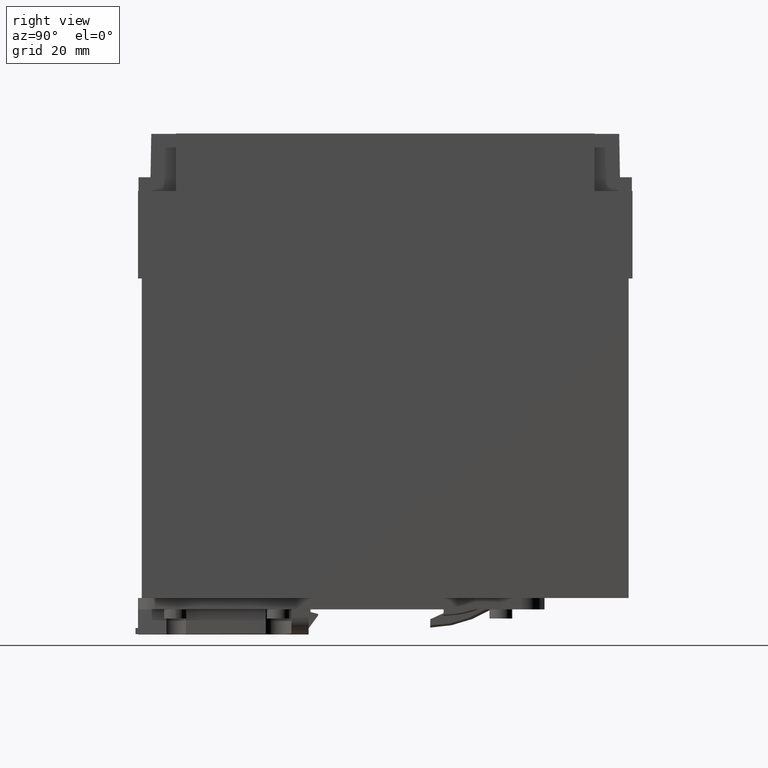
[diagram: clean part render]
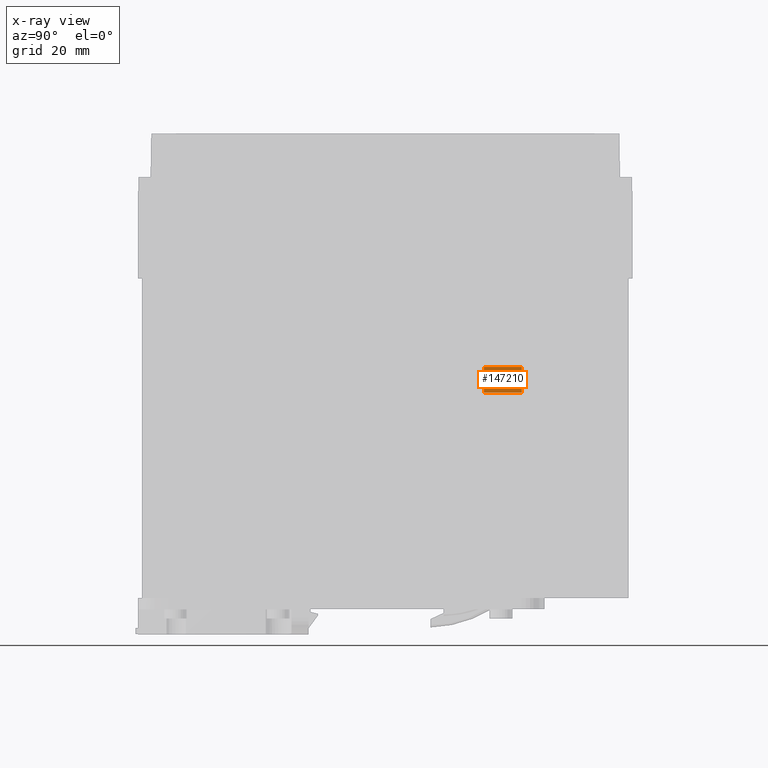
[diagram: x-ray — body ghosted, one internal face saturated and labeled with its STEP entity id]
A machine part, right view, then the same camera in x-ray: the body is ghosted and one INTERNAL B-rep face — a face not visible from any outside direction — is saturated and labeled: STEP entity #147210.
In plain terms, the highlighted planar face has unit normal (-0.9684, 0, -0.2495).
Its self-contained STEP definition (entity closure, byte-faithful):
#140520=CARTESIAN_POINT('',(-3.36106963331365,75.9867596764741,-67.9));
#140530=VERTEX_POINT('',#140520);
#140620=CARTESIAN_POINT('',(-3.36106963331365,75.9867596764741,-77.9));
#140630=VERTEX_POINT('',#140620);
#140660=CARTESIAN_POINT('',(-3.36106963331365,75.9867596764741,-77.9));
#140670=DIRECTION('',(0.,0.,1.));
#140680=VECTOR('',#140670,1.);
#140690=LINE('',#140660,#140680);
#140700=EDGE_CURVE('',#140630,#140530,#140690,.T.);
#142490=CARTESIAN_POINT('',(-5.0992271540811,82.7343993930495,-77.9));
#142500=VERTEX_POINT('',#142490);
#142580=CARTESIAN_POINT('',(-5.0992271540811,82.7343993930495,-67.9));
#142590=VERTEX_POINT('',#142580);
#142620=CARTESIAN_POINT('',(-5.09922715407969,82.73439939305,0.));
#142630=DIRECTION('',(0.,0.,-1.));
#142640=VECTOR('',#142630,1.);
#142650=LINE('',#142620,#142640);
#142660=EDGE_CURVE('',#142590,#142500,#142650,.T.);
#147000=CARTESIAN_POINT('',(-3.31290105981696,75.7997661642709,-67.6311)
);
#147010=DIRECTION('',(-0.968387264041738,-0.24945161222521,-0.));
#147020=DIRECTION('',(-0.24945161222521,0.968387264041738,0.));
#147030=AXIS2_PLACEMENT_3D('',#147000,#147010,#147020);
#147040=PLANE('',#147030);
#147050=ORIENTED_EDGE('',*,*,#142660,.T.);
#147060=CARTESIAN_POINT('',(16.2127314821206,0.,-67.9));
#147070=DIRECTION('',(0.24945161222521,-0.968387264041738,0.));
#147080=VECTOR('',#147070,1.);
#147090=LINE('',#147060,#147080);
#147100=EDGE_CURVE('',#142590,#140530,#147090,.T.);
#147110=ORIENTED_EDGE('',*,*,#147100,.F.);
#147120=ORIENTED_EDGE('',*,*,#140700,.T.);
#147130=CARTESIAN_POINT('',(16.2127314821206,0.,-77.9));
#147140=DIRECTION('',(0.24945161222521,-0.968387264041738,0.));
#147150=VECTOR('',#147140,1.);
#147160=LINE('',#147130,#147150);
#147170=EDGE_CURVE('',#142500,#140630,#147160,.T.);
#147180=ORIENTED_EDGE('',*,*,#147170,.T.);
#147190=EDGE_LOOP('',(#147180,#147120,#147110,#147050));
#147200=FACE_OUTER_BOUND('',#147190,.T.);
#147210=ADVANCED_FACE('',(#147200),#147040,.T.);